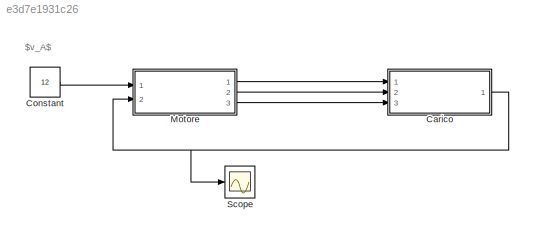
MODEL slx_e3d7e1931c26
KIND model
CONFIG AbsTol = auto
CONFIG EnableMultiTasking = off
CONFIG FixedStep = auto
CONFIG MaxStep = auto
CONFIG MinStep = auto
CONFIG RelTol = 1e-3
CONFIG SampleTimeConstraint = Unconstrained
CONFIG SolverName = VariableStepAuto
CONFIG StartTime = 0.0
CONFIG StopTime = 20
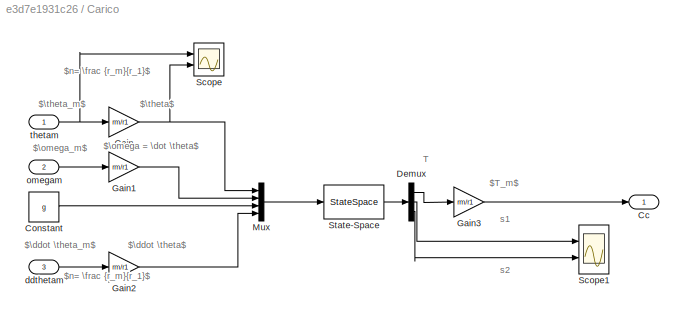
BLOCK [SubSystem] Carico
  Ports = [3, 1]
  RequestExecContextInheritance = off
BLOCK [Outport] Carico/Cc
BLOCK [Constant] Carico/Constant
  Value = g
BLOCK [Demux] Carico/Demux
  Outputs = 3
  Ports = [1, 3]
BLOCK [Gain] Carico/Gain
  Gain = rm/r1
BLOCK [Gain] Carico/Gain1
  Gain = rm/r1
BLOCK [Gain] Carico/Gain2
  Gain = rm/r1
BLOCK [Gain] Carico/Gain3
  Gain = rm/r1
BLOCK [Mux] Carico/Mux
  DisplayOption = bar
  Ports = [4, 1]
BLOCK [Scope] Carico/Scope
  Floating = off
  NumInputPorts = 2
  Ports = [2]
  ScopeSpecificationString = Simulink.scopes.TimeScopeBlockCfg('CurrentConfiguration', extmgr.ConfigurationSet(extmgr.Configuration('Core','General UI',true),extmgr.Configuration('Core','Source UI',true),extmgr.Configuration('Sources','WiredSimulink',true,'DataLoggingVariableName','ScopeData1'),extmgr.Configuration('Visuals','Time Domain',true,'SerializedDisplays',{struct('MinYLimReal','-176.11482','MaxYLimReal','1585.03341',...<+1388ch>
BLOCK [Scope] Carico/Scope1
  Floating = off
  NumInputPorts = 2
  Ports = [2]
  ScopeSpecificationString = Simulink.scopes.TimeScopeBlockCfg('CurrentConfiguration', extmgr.ConfigurationSet(extmgr.Configuration('Core','General UI',true),extmgr.Configuration('Core','Source UI',true),extmgr.Configuration('Sources','WiredSimulink',true,'DataLoggingVariableName','ScopeData3'),extmgr.Configuration('Visuals','Time Domain',true,'SerializedDisplays',{struct('MinYLimReal','-5.06213','MaxYLimReal','44.40732','YLa...<+1424ch>
BLOCK [StateSpace] Carico/State-Space
  A = A
  B = B
  C = C
  D = D
  InitialCondition = xc
  Ports = [1, 1]
BLOCK [Inport] Carico/ddthetam
  Port = 3
BLOCK [Inport] Carico/omegam
  Port = 2
BLOCK [Inport] Carico/thetam
BLOCK [Constant] Constant
  Value = 12
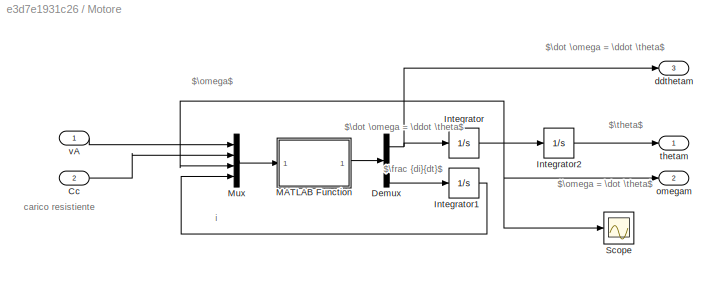
BLOCK [SubSystem] Motore
  Ports = [2, 3]
  RequestExecContextInheritance = off
BLOCK [Inport] Motore/Cc
  Port = 2
BLOCK [Demux] Motore/Demux
  Outputs = 2
  Ports = [1, 2]
BLOCK [Integrator] Motore/Integrator
  InitialCondition = xm(2)
  Ports = [1, 1]
BLOCK [Integrator] Motore/Integrator1
  InitialCondition = xm(3)
  Ports = [1, 1]
BLOCK [Integrator] Motore/Integrator2
  InitialCondition = xm(1)
  Ports = [1, 1]
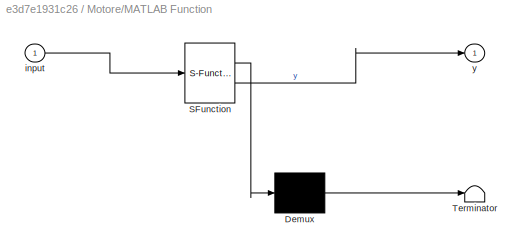
BLOCK [SubSystem] Motore/MATLAB Function
  ErrorFcn = Stateflow.Translate.translate
  PermitHierarchicalResolution = ExplicitOnly
  Ports = [1, 1]
  RequestExecContextInheritance = off
  SFBlockType = MATLAB Function
  TreatAsAtomicUnit = on
BLOCK [Demux] Motore/MATLAB Function/ Demux 
  Outputs = 1
  Ports = [1, 1]
BLOCK [S-Function] Motore/MATLAB Function/ SFunction 
  EnableBusSupport = on
  FunctionName = sf_sfun
  PortCounts = [1 2]
  Ports = [1, 2]
  SFcnIsStateOwnerBlock = off
  SFunctionDeploymentMode = off
  Tag = Stateflow S-Function 2
BLOCK [Terminator] Motore/MATLAB Function/ Terminator 
BLOCK [Inport] Motore/MATLAB Function/input
BLOCK [Outport] Motore/MATLAB Function/y
BLOCK [Mux] Motore/Mux
  DisplayOption = bar
  Ports = [4, 1]
BLOCK [Scope] Motore/Scope
  Floating = off
  NumInputPorts = 1
  Ports = [1]
  ScopeSpecificationString = Simulink.scopes.TimeScopeBlockCfg('CurrentConfiguration', extmgr.ConfigurationSet(extmgr.Configuration('Core','General UI',true),extmgr.Configuration('Core','Source UI',true),extmgr.Configuration('Sources','WiredSimulink',true,'DataLoggingVariableName','ScopeData2'),extmgr.Configuration('Visuals','Time Domain',true,'SerializedDisplays',{struct('MinYLimReal','-9.14036','MaxYLimReal','82.26324','YLa...<+1373ch>
BLOCK [Outport] Motore/ddthetam
  Port = 3
BLOCK [Outport] Motore/omegam
  Port = 2
BLOCK [Outport] Motore/thetam
BLOCK [Inport] Motore/vA
BLOCK [Scope] Scope
  Floating = off
  NumInputPorts = 1
  Ports = [1]
  ScopeSpecificationString = Simulink.scopes.TimeScopeBlockCfg('CurrentConfiguration', extmgr.ConfigurationSet(extmgr.Configuration('Core','General UI',true),extmgr.Configuration('Core','Source UI',true),extmgr.Configuration('Sources','WiredSimulink',true),extmgr.Configuration('Visuals','Time Domain',true,'SerializedDisplays',{struct('MinYLimReal','-0.04976','MaxYLimReal','0.44784','YLabelReal','','MinYLimMag','0.00000','MaxY...<+1326ch>
ANNOTATION (root): $v_A$
ANNOTATION Carico: $T_m$
ANNOTATION Carico: $\ddot \theta$
ANNOTATION Carico: $\ddot \theta_m$
ANNOTATION Carico: $\omega = \dot \theta$
ANNOTATION Carico: $\omega_m$
ANNOTATION Carico: $\theta$
ANNOTATION Carico: $\theta_m$
ANNOTATION Carico: $n= \frac {r_m}{r_1}$
ANNOTATION Carico: T
ANNOTATION Carico: s1
ANNOTATION Carico: s2
ANNOTATION Motore: $\dot \omega = \ddot \theta$
ANNOTATION Motore: $\frac {di}{dt}$
ANNOTATION Motore: $\omega = \dot \theta$
ANNOTATION Motore: $\omega$
ANNOTATION Motore: $\theta$
ANNOTATION Motore: carico resistiente
ANNOTATION Motore: i
LINE Carico/Constant:1 -> Carico/Mux:3
LINE Carico/Demux:1 -> Carico/Gain3:1
LINE Carico/Demux:2 -> Carico/Scope1:1
LINE Carico/Demux:3 -> Carico/Scope1:2
LINE Carico/Gain1:1 -> Carico/Mux:2
LINE Carico/Gain2:1 -> Carico/Mux:4
LINE Carico/Gain3:1 -> Carico/Cc:1
NET Carico/Gain:1 -> Carico/Mux:1, Carico/Scope:2
LINE Carico/Mux:1 -> Carico/State-Space:1
LINE Carico/State-Space:1 -> Carico/Demux:1
LINE Carico/ddthetam:1 -> Carico/Gain2:1
LINE Carico/omegam:1 -> Carico/Gain1:1
NET Carico/thetam:1 -> Carico/Gain:1, Carico/Scope:1
NET Carico:1 -> Motore:2, Scope:1
LINE Constant:1 -> Motore:1
LINE Motore/Cc:1 -> Motore/Mux:2
NET Motore/Demux:1 -> Motore/Integrator:1, Motore/ddthetam:1
LINE Motore/Demux:2 -> Motore/Integrator1:1
LINE Motore/Integrator1:1 -> Motore/Mux:4
LINE Motore/Integrator2:1 -> Motore/thetam:1
NET Motore/Integrator:1 -> Motore/Integrator2:1, Motore/Mux:3, Motore/Scope:1, Motore/omegam:1
LINE Motore/MATLAB Function:1 -> Motore/Demux:1
LINE Motore/Mux:1 -> Motore/MATLAB Function:1
LINE Motore/vA:1 -> Motore/Mux:1
LINE Motore:1 -> Carico:1
LINE Motore:2 -> Carico:2
LINE Motore:3 -> Carico:3
note: NET lines group one-source signal fan-out (src -> all destinations, sorted); 1:1 wires keep LINE
CHART Motore/MATLAB Function states=1 transitions=1
  STATE_LABEL 'eML_blk_kernel()'
  STATE_LABEL "SCRIPT:\nfunction y = fcn(input)\n\nRa=0.4;\nL=0.2*1e-3;\nbm=0.0072;\nkc=0.02;\nkv=0.02;\nJm=0.002;\ny = [0 0]'; \n\nvA = input (1);\nCc = input (2);\nomega = input (3);\ni = input (4);\n\n%%y1=domega, y2=di\ny(1) = -(bm/Jm)*omega+(kc/Jm)*i-(Cc/Jm);\ny(2) = -(Ra/L)*i+(vA/L)-(kv/L)*omega;\n"
CHART  states=0 transitions=0
